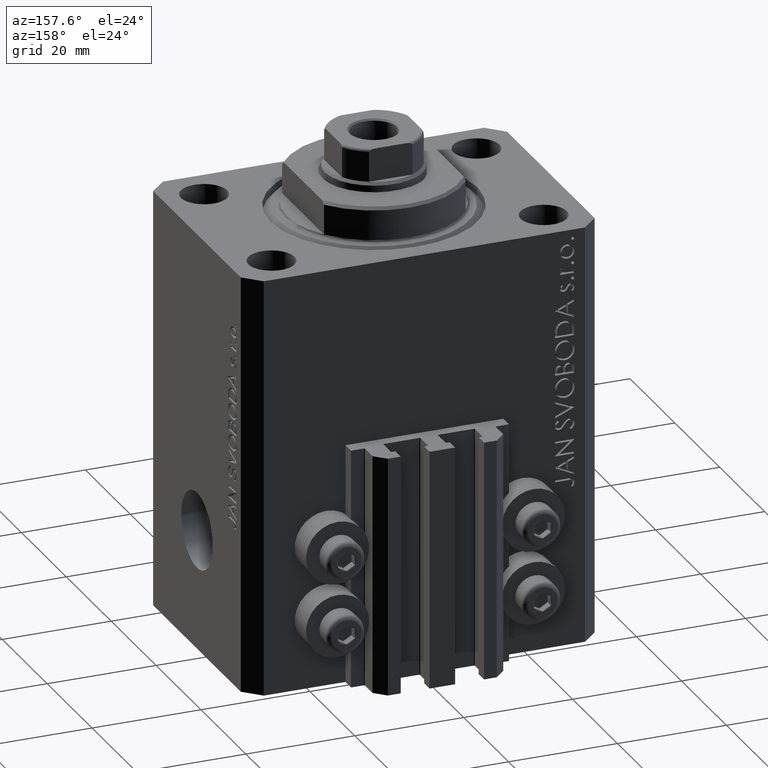
[diagram: clean part render]
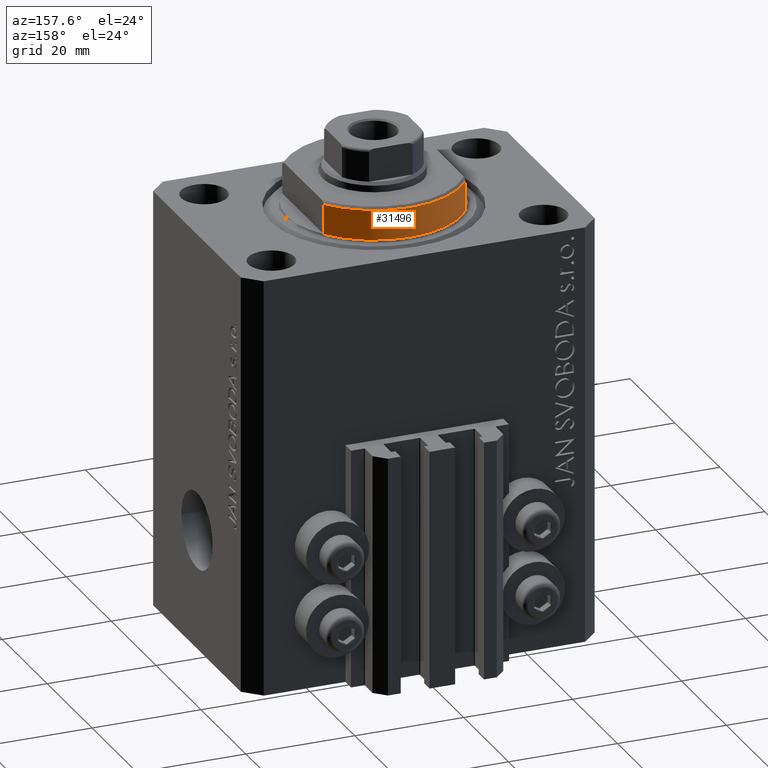
[diagram: same view with one face highlighted and labeled with its STEP entity id]
A machine part, auxiliary view. The second image highlights one B-rep face of the part: STEP entity #31496.
In plain terms, the highlighted cylindrical surface (partial cylindrical patch) has radius 16 mm, axis along (0, 0, -1).
Its self-contained STEP definition (entity closure, byte-faithful):
#834 = AXIS2_PLACEMENT_3D ( 'NONE', #23122, #5615, #4909 ) ;
#1307 = DIRECTION ( 'NONE',  ( -0.000000000000000000, -0.000000000000000000, 1.000000000000000000 ) ) ;
#3444 = ORIENTED_EDGE ( 'NONE', *, *, #45711, .T. ) ;
#4063 = VERTEX_POINT ( 'NONE', #16524 ) ;
#4522 = EDGE_CURVE ( 'NONE', #21134, #26586, #19763, .T. ) ;
#4703 = DIRECTION ( 'NONE',  ( 0.000000000000000000, 0.000000000000000000, 1.000000000000000000 ) ) ;
#4776 = EDGE_CURVE ( 'NONE', #26586, #4063, #10820, .T. ) ;
#4909 = DIRECTION ( 'NONE',  ( 1.000000000000000000, -8.881784197001252323E-16, 0.000000000000000000 ) ) ;
#5615 = DIRECTION ( 'NONE',  ( -0.000000000000000000, -0.000000000000000000, -1.000000000000000000 ) ) ;
#8294 = VECTOR ( 'NONE', #40134, 1000.000000000000000 ) ;
#9070 = CARTESIAN_POINT ( 'NONE',  ( 13.00000000000000000, 9.327379053088916905, -6.000000000000014211 ) ) ;
#10820 = LINE ( 'NONE', #25458, #8294 ) ;
#12781 = LINE ( 'NONE', #34167, #16090 ) ;
#13454 = CARTESIAN_POINT ( 'NONE',  ( 0.000000000000000000, 0.000000000000000000, -6.000000000000023981 ) ) ;
#14635 = ORIENTED_EDGE ( 'NONE', *, *, #4522, .T. ) ;
#16090 = VECTOR ( 'NONE', #1307, 1000.000000000000000 ) ;
#16418 = DIRECTION ( 'NONE',  ( -0.000000000000000000, -0.000000000000000000, 1.000000000000000000 ) ) ;
#16524 = CARTESIAN_POINT ( 'NONE',  ( -13.00000000000000000, 9.327379053088815652, -0.4999999999999995559 ) ) ;
#18460 = CIRCLE ( 'NONE', #834, 16.00000000000000000 ) ;
#19547 = CARTESIAN_POINT ( 'NONE',  ( -13.00000000000000000, 9.327379053088916905, -6.000000000000014211 ) ) ;
#19763 = CIRCLE ( 'NONE', #25885, 16.00000000000000000 ) ;
#21134 = VERTEX_POINT ( 'NONE', #9070 ) ;
#23122 = CARTESIAN_POINT ( 'NONE',  ( 0.000000000000000000, 0.000000000000000000, -0.4999999999999995559 ) ) ;
#23854 = CYLINDRICAL_SURFACE ( 'NONE', #28863, 16.00000000000000000 ) ;
#24083 = FACE_OUTER_BOUND ( 'NONE', #42079, .T. ) ;
#25458 = CARTESIAN_POINT ( 'NONE',  ( -13.00000000000000000, 9.327379053088813876, -6.500000000000000000 ) ) ;
#25885 = AXIS2_PLACEMENT_3D ( 'NONE', #13454, #4703, #41417 ) ;
#26586 = VERTEX_POINT ( 'NONE', #19547 ) ;
#28863 = AXIS2_PLACEMENT_3D ( 'NONE', #39226, #16418, #46419 ) ;
#30121 = ORIENTED_EDGE ( 'NONE', *, *, #42920, .F. ) ;
#31496 = ADVANCED_FACE ( 'NONE', ( #24083 ), #23854, .T. ) ;
#34167 = CARTESIAN_POINT ( 'NONE',  ( 13.00000000000000000, 9.327379053088813876, -6.500000000000000000 ) ) ;
#34440 = ORIENTED_EDGE ( 'NONE', *, *, #4776, .T. ) ;
#39226 = CARTESIAN_POINT ( 'NONE',  ( 0.000000000000000000, 0.000000000000000000, -6.500000000000000000 ) ) ;
#40134 = DIRECTION ( 'NONE',  ( -0.000000000000000000, -0.000000000000000000, 1.000000000000000000 ) ) ;
#41417 = DIRECTION ( 'NONE',  ( -1.000000000000000000, 0.000000000000000000, 0.000000000000000000 ) ) ;
#41502 = CARTESIAN_POINT ( 'NONE',  ( 13.00000000000000000, 9.327379053088815652, -0.4999999999999995559 ) ) ;
#42079 = EDGE_LOOP ( 'NONE', ( #30121, #14635, #34440, #3444 ) ) ;
#42920 = EDGE_CURVE ( 'NONE', #21134, #44911, #12781, .T. ) ;
#44911 = VERTEX_POINT ( 'NONE', #41502 ) ;
#45711 = EDGE_CURVE ( 'NONE', #4063, #44911, #18460, .T. ) ;
#46419 = DIRECTION ( 'NONE',  ( 1.000000000000000000, 0.000000000000000000, 0.000000000000000000 ) ) ;